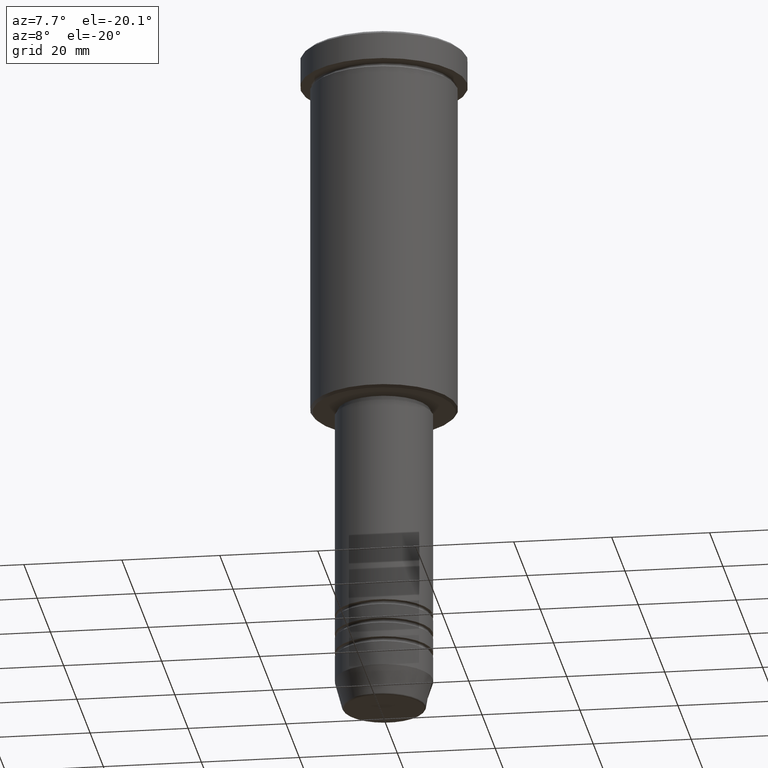
[diagram: clean part render]
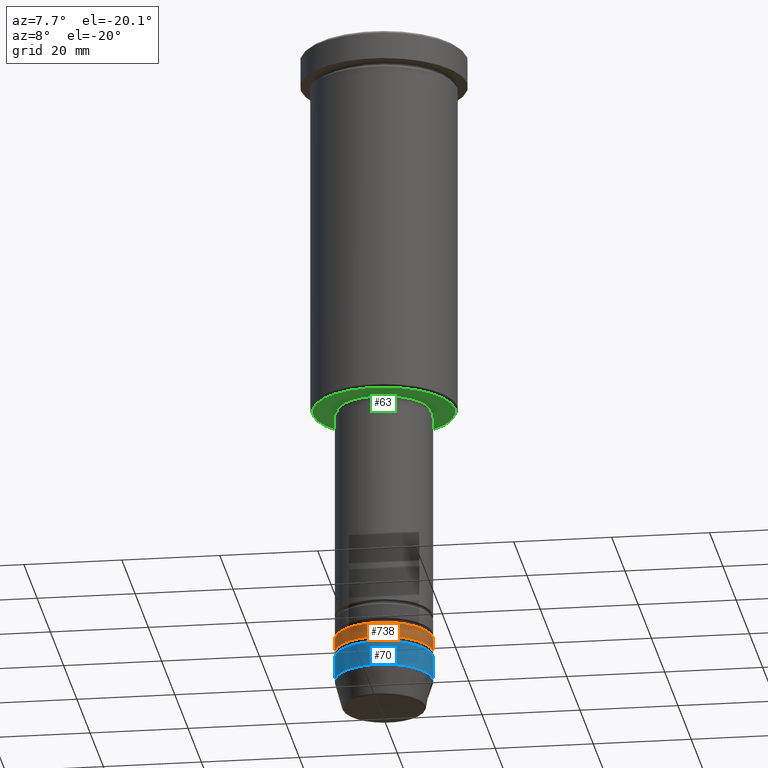
[diagram: same view with three faces highlighted in distinct colors, each labeled with its STEP entity id]
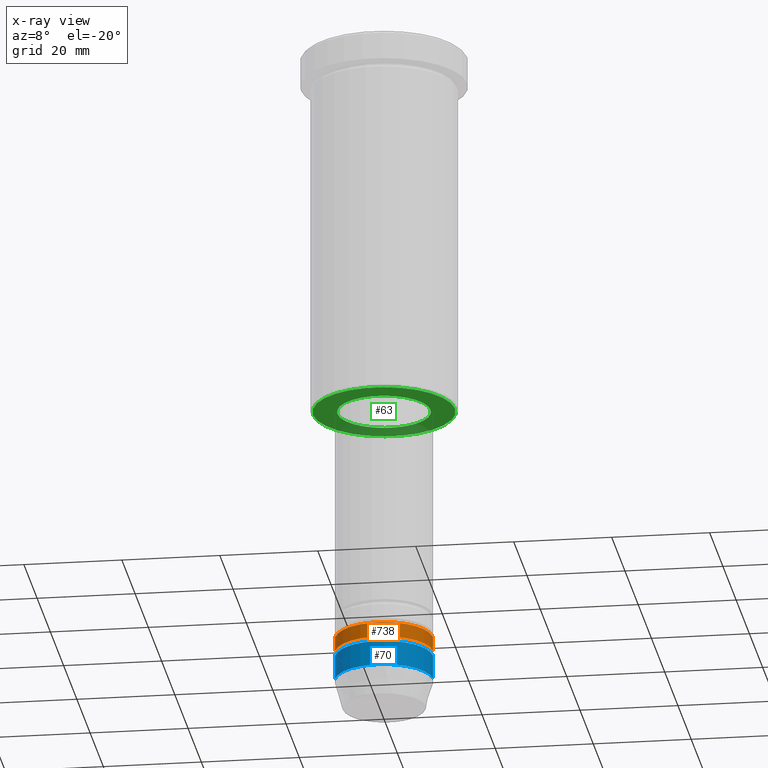
[diagram: x-ray of the same camera — body ghosted, the three highlighted faces saturated]
A machine part, auxiliary view with three faces highlighted in distinct colors.
The next image is the same camera in x-ray (body ghosted, the three faces saturated) — at least one of them is partly hidden behind the body in this view.
Their STEP definitions:

[orange] entity #738 — the highlighted cylindrical surface (partial cylindrical patch) has radius 10 mm, axis along (-0, -0, 1).
#27 = AXIS2_PLACEMENT_3D ( 'NONE', #969, #888, #718 ) ;
#54 = VECTOR ( 'NONE', #259, 1000.000000000000000 ) ;
#62 = ORIENTED_EDGE ( 'NONE', *, *, #262, .T. ) ;
#97 = EDGE_CURVE ( 'NONE', #485, #950, #1113, .T. ) ;
#182 = CARTESIAN_POINT ( 'NONE',  ( 0.000000000000000000, 0.000000000000000000, 0.000000000000000000 ) ) ;
#190 = CARTESIAN_POINT ( 'NONE',  ( -10.00000000000000000, 1.224646799147353256E-15, -125.0000000000000000 ) ) ;
#213 = DIRECTION ( 'NONE',  ( -0.000000000000000000, -0.000000000000000000, 1.000000000000000000 ) ) ;
#256 = CARTESIAN_POINT ( 'NONE',  ( -10.00000000000000178, 1.224646799147353454E-15, -128.0000000000000000 ) ) ;
#259 = DIRECTION ( 'NONE',  ( -0.000000000000000000, -0.000000000000000000, 1.000000000000000000 ) ) ;
#262 = EDGE_CURVE ( 'NONE', #525, #475, #723, .T. ) ;
#333 = EDGE_CURVE ( 'NONE', #525, #485, #765, .T. ) ;
#350 = AXIS2_PLACEMENT_3D ( 'NONE', #182, #551, #917 ) ;
#458 = FACE_OUTER_BOUND ( 'NONE', #590, .T. ) ;
#475 = VERTEX_POINT ( 'NONE', #943 ) ;
#485 = VERTEX_POINT ( 'NONE', #190 ) ;
#498 = CARTESIAN_POINT ( 'NONE',  ( 10.00000000000000000, 0.000000000000000000, -125.0000000000000000 ) ) ;
#525 = VERTEX_POINT ( 'NONE', #256 ) ;
#532 = LINE ( 'NONE', #900, #951 ) ;
#551 = DIRECTION ( 'NONE',  ( -0.000000000000000000, -0.000000000000000000, 1.000000000000000000 ) ) ;
#580 = EDGE_CURVE ( 'NONE', #475, #950, #532, .T. ) ;
#590 = EDGE_LOOP ( 'NONE', ( #982, #62, #1027, #1056 ) ) ;
#609 = DIRECTION ( 'NONE',  ( -0.000000000000000000, -0.000000000000000000, 1.000000000000000000 ) ) ;
#674 = DIRECTION ( 'NONE',  ( 1.000000000000000000, 0.000000000000000000, 0.000000000000000000 ) ) ;
#718 = DIRECTION ( 'NONE',  ( 1.000000000000000000, 0.000000000000000000, 0.000000000000000000 ) ) ;
#723 = CIRCLE ( 'NONE', #759, 10.00000000000000178 ) ;
#737 = CYLINDRICAL_SURFACE ( 'NONE', #350, 10.00000000000000178 ) ;
#738 = ADVANCED_FACE ( 'NONE', ( #458 ), #737, .T. ) ;
#759 = AXIS2_PLACEMENT_3D ( 'NONE', #1015, #213, #674 ) ;
#765 = LINE ( 'NONE', #892, #54 ) ;
#888 = DIRECTION ( 'NONE',  ( -0.000000000000000000, -0.000000000000000000, 1.000000000000000000 ) ) ;
#892 = CARTESIAN_POINT ( 'NONE',  ( -10.00000000000000178, 1.224646799147353454E-15, 0.000000000000000000 ) ) ;
#900 = CARTESIAN_POINT ( 'NONE',  ( 10.00000000000000178, 0.000000000000000000, 0.000000000000000000 ) ) ;
#917 = DIRECTION ( 'NONE',  ( 1.000000000000000000, 0.000000000000000000, 0.000000000000000000 ) ) ;
#943 = CARTESIAN_POINT ( 'NONE',  ( 10.00000000000000178, 0.000000000000000000, -128.0000000000000000 ) ) ;
#950 = VERTEX_POINT ( 'NONE', #498 ) ;
#951 = VECTOR ( 'NONE', #609, 1000.000000000000000 ) ;
#969 = CARTESIAN_POINT ( 'NONE',  ( 0.000000000000000000, 0.000000000000000000, -125.0000000000000000 ) ) ;
#982 = ORIENTED_EDGE ( 'NONE', *, *, #333, .F. ) ;
#1015 = CARTESIAN_POINT ( 'NONE',  ( 0.000000000000000000, 0.000000000000000000, -128.0000000000000000 ) ) ;
#1027 = ORIENTED_EDGE ( 'NONE', *, *, #580, .T. ) ;
#1056 = ORIENTED_EDGE ( 'NONE', *, *, #97, .F. ) ;
#1113 = CIRCLE ( 'NONE', #27, 10.00000000000000000 ) ;

[blue] entity #70 — the highlighted cylindrical surface (partial cylindrical patch) has radius 10 mm, axis along (-0, -0, 1).
#36 = CARTESIAN_POINT ( 'NONE',  ( -10.00000000000000178, 1.224646799147353454E-15, -134.0000000000000000 ) ) ;
#70 = ADVANCED_FACE ( 'NONE', ( #245 ), #489, .T. ) ;
#91 = VECTOR ( 'NONE', #1032, 1000.000000000000000 ) ;
#108 = VERTEX_POINT ( 'NONE', #807 ) ;
#124 = DIRECTION ( 'NONE',  ( -0.000000000000000000, -0.000000000000000000, 1.000000000000000000 ) ) ;
#132 = ORIENTED_EDGE ( 'NONE', *, *, #564, .F. ) ;
#245 = FACE_OUTER_BOUND ( 'NONE', #537, .T. ) ;
#334 = AXIS2_PLACEMENT_3D ( 'NONE', #698, #600, #522 ) ;
#421 = EDGE_CURVE ( 'NONE', #974, #450, #576, .T. ) ;
#424 = CIRCLE ( 'NONE', #334, 10.00000000000000000 ) ;
#440 = ORIENTED_EDGE ( 'NONE', *, *, #530, .T. ) ;
#450 = VERTEX_POINT ( 'NONE', #463 ) ;
#454 = DIRECTION ( 'NONE',  ( -0.000000000000000000, -0.000000000000000000, 1.000000000000000000 ) ) ;
#463 = CARTESIAN_POINT ( 'NONE',  ( 10.00000000000000178, 0.000000000000000000, -134.0000000000000000 ) ) ;
#489 = CYLINDRICAL_SURFACE ( 'NONE', #1156, 10.00000000000000178 ) ;
#522 = DIRECTION ( 'NONE',  ( 1.000000000000000000, 0.000000000000000000, 0.000000000000000000 ) ) ;
#530 = EDGE_CURVE ( 'NONE', #450, #108, #1002, .T. ) ;
#537 = EDGE_LOOP ( 'NONE', ( #132, #1150, #440, #871 ) ) ;
#553 = CARTESIAN_POINT ( 'NONE',  ( 10.00000000000000178, 0.000000000000000000, 0.000000000000000000 ) ) ;
#564 = EDGE_CURVE ( 'NONE', #974, #965, #1019, .T. ) ;
#576 = CIRCLE ( 'NONE', #1176, 10.00000000000000178 ) ;
#600 = DIRECTION ( 'NONE',  ( -0.000000000000000000, -0.000000000000000000, 1.000000000000000000 ) ) ;
#610 = CARTESIAN_POINT ( 'NONE',  ( -10.00000000000000000, 1.224646799147353256E-15, -129.0000000000000000 ) ) ;
#617 = CARTESIAN_POINT ( 'NONE',  ( 0.000000000000000000, 0.000000000000000000, 0.000000000000000000 ) ) ;
#657 = DIRECTION ( 'NONE',  ( 1.000000000000000000, 0.000000000000000000, 0.000000000000000000 ) ) ;
#687 = CARTESIAN_POINT ( 'NONE',  ( -10.00000000000000178, 1.224646799147353454E-15, 0.000000000000000000 ) ) ;
#698 = CARTESIAN_POINT ( 'NONE',  ( 0.000000000000000000, 0.000000000000000000, -129.0000000000000000 ) ) ;
#739 = VECTOR ( 'NONE', #1035, 1000.000000000000000 ) ;
#780 = DIRECTION ( 'NONE',  ( 1.000000000000000000, 0.000000000000000000, 0.000000000000000000 ) ) ;
#807 = CARTESIAN_POINT ( 'NONE',  ( 10.00000000000000000, 0.000000000000000000, -129.0000000000000000 ) ) ;
#871 = ORIENTED_EDGE ( 'NONE', *, *, #1018, .F. ) ;
#965 = VERTEX_POINT ( 'NONE', #610 ) ;
#974 = VERTEX_POINT ( 'NONE', #36 ) ;
#1002 = LINE ( 'NONE', #553, #739 ) ;
#1018 = EDGE_CURVE ( 'NONE', #965, #108, #424, .T. ) ;
#1019 = LINE ( 'NONE', #687, #91 ) ;
#1032 = DIRECTION ( 'NONE',  ( -0.000000000000000000, -0.000000000000000000, 1.000000000000000000 ) ) ;
#1035 = DIRECTION ( 'NONE',  ( -0.000000000000000000, -0.000000000000000000, 1.000000000000000000 ) ) ;
#1075 = CARTESIAN_POINT ( 'NONE',  ( 0.000000000000000000, 0.000000000000000000, -134.0000000000000000 ) ) ;
#1150 = ORIENTED_EDGE ( 'NONE', *, *, #421, .T. ) ;
#1156 = AXIS2_PLACEMENT_3D ( 'NONE', #617, #124, #780 ) ;
#1176 = AXIS2_PLACEMENT_3D ( 'NONE', #1075, #454, #657 ) ;

[green] entity #63 — the highlighted planar face has unit normal (0, 0, -1).
#15 = AXIS2_PLACEMENT_3D ( 'NONE', #990, #81, #1082 ) ;
#63 = ADVANCED_FACE ( 'NONE', ( #1125, #961 ), #423, .T. ) ;
#81 = DIRECTION ( 'NONE',  ( 0.000000000000000000, 0.000000000000000000, -1.000000000000000000 ) ) ;
#152 = DIRECTION ( 'NONE',  ( -1.000000000000000000, 0.000000000000000000, -0.000000000000000000 ) ) ;
#167 = ORIENTED_EDGE ( 'NONE', *, *, #1097, .T. ) ;
#172 = AXIS2_PLACEMENT_3D ( 'NONE', #554, #989, #543 ) ;
#185 = DIRECTION ( 'NONE',  ( -1.000000000000000000, 0.000000000000000000, 0.000000000000000000 ) ) ;
#232 = CIRCLE ( 'NONE', #15, 14.49999999999996980 ) ;
#346 = VERTEX_POINT ( 'NONE', #1071 ) ;
#349 = AXIS2_PLACEMENT_3D ( 'NONE', #636, #471, #185 ) ;
#353 = EDGE_CURVE ( 'NONE', #356, #374, #916, .T. ) ;
#356 = VERTEX_POINT ( 'NONE', #621 ) ;
#374 = VERTEX_POINT ( 'NONE', #1111 ) ;
#405 = DIRECTION ( 'NONE',  ( 0.000000000000000000, 0.000000000000000000, -1.000000000000000000 ) ) ;
#419 = CARTESIAN_POINT ( 'NONE',  ( -9.500000000000001776, 1.163414459189985682E-15, -76.00000000000001421 ) ) ;
#423 = PLANE ( 'NONE',  #681 ) ;
#438 = EDGE_CURVE ( 'NONE', #962, #346, #496, .T. ) ;
#471 = DIRECTION ( 'NONE',  ( 0.000000000000000000, 0.000000000000000000, -1.000000000000000000 ) ) ;
#496 = CIRCLE ( 'NONE', #172, 9.500000000000001776 ) ;
#529 = EDGE_LOOP ( 'NONE', ( #805, #167 ) ) ;
#543 = DIRECTION ( 'NONE',  ( 1.000000000000000000, 0.000000000000000000, 0.000000000000000000 ) ) ;
#554 = CARTESIAN_POINT ( 'NONE',  ( 0.000000000000000000, 0.000000000000000000, -76.00000000000001421 ) ) ;
#593 = ORIENTED_EDGE ( 'NONE', *, *, #438, .T. ) ;
#621 = CARTESIAN_POINT ( 'NONE',  ( 14.49999999999996980, 0.000000000000000000, -76.00000000000001421 ) ) ;
#636 = CARTESIAN_POINT ( 'NONE',  ( 0.000000000000000000, 0.000000000000000000, -76.00000000000001421 ) ) ;
#650 = CIRCLE ( 'NONE', #1141, 9.500000000000001776 ) ;
#681 = AXIS2_PLACEMENT_3D ( 'NONE', #858, #405, #152 ) ;
#695 = ORIENTED_EDGE ( 'NONE', *, *, #995, .T. ) ;
#803 = DIRECTION ( 'NONE',  ( 1.000000000000000000, 0.000000000000000000, 0.000000000000000000 ) ) ;
#805 = ORIENTED_EDGE ( 'NONE', *, *, #353, .T. ) ;
#839 = EDGE_LOOP ( 'NONE', ( #695, #593 ) ) ;
#858 = CARTESIAN_POINT ( 'NONE',  ( 0.000000000000000000, 15.00000000000000000, -76.00000000000001421 ) ) ;
#916 = CIRCLE ( 'NONE', #349, 14.49999999999996980 ) ;
#961 = FACE_BOUND ( 'NONE', #839, .T. ) ;
#962 = VERTEX_POINT ( 'NONE', #419 ) ;
#989 = DIRECTION ( 'NONE',  ( -0.000000000000000000, -0.000000000000000000, 1.000000000000000000 ) ) ;
#990 = CARTESIAN_POINT ( 'NONE',  ( 0.000000000000000000, 0.000000000000000000, -76.00000000000001421 ) ) ;
#995 = EDGE_CURVE ( 'NONE', #346, #962, #650, .T. ) ;
#1040 = DIRECTION ( 'NONE',  ( -0.000000000000000000, -0.000000000000000000, 1.000000000000000000 ) ) ;
#1071 = CARTESIAN_POINT ( 'NONE',  ( 9.500000000000001776, 0.000000000000000000, -76.00000000000001421 ) ) ;
#1082 = DIRECTION ( 'NONE',  ( -1.000000000000000000, 0.000000000000000000, 0.000000000000000000 ) ) ;
#1097 = EDGE_CURVE ( 'NONE', #374, #356, #232, .T. ) ;
#1111 = CARTESIAN_POINT ( 'NONE',  ( -14.49999999999996980, 1.806354028742344224E-15, -76.00000000000001421 ) ) ;
#1125 = FACE_OUTER_BOUND ( 'NONE', #529, .T. ) ;
#1131 = CARTESIAN_POINT ( 'NONE',  ( 0.000000000000000000, 0.000000000000000000, -76.00000000000001421 ) ) ;
#1141 = AXIS2_PLACEMENT_3D ( 'NONE', #1131, #1040, #803 ) ;